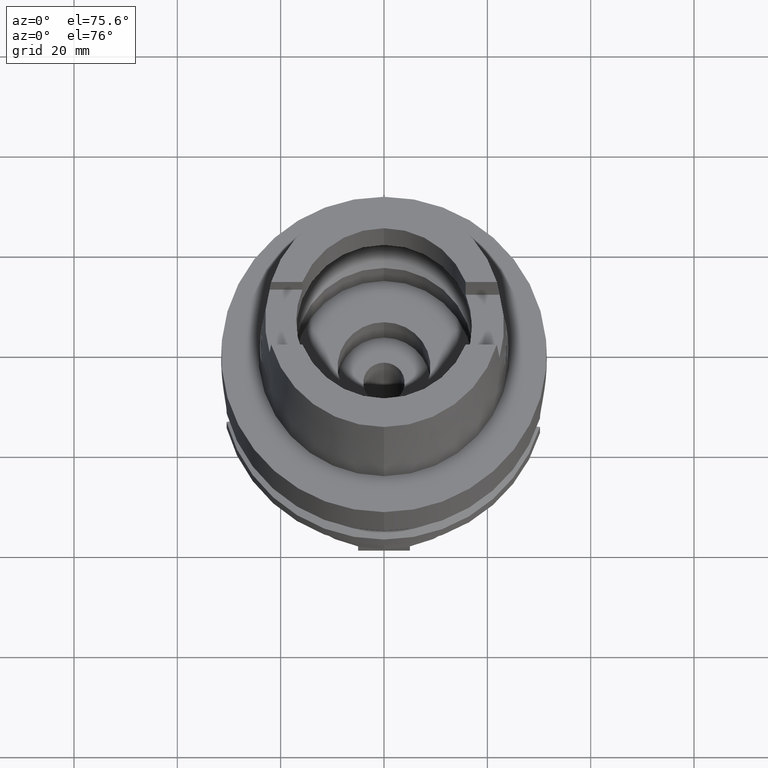
[diagram: clean part render]
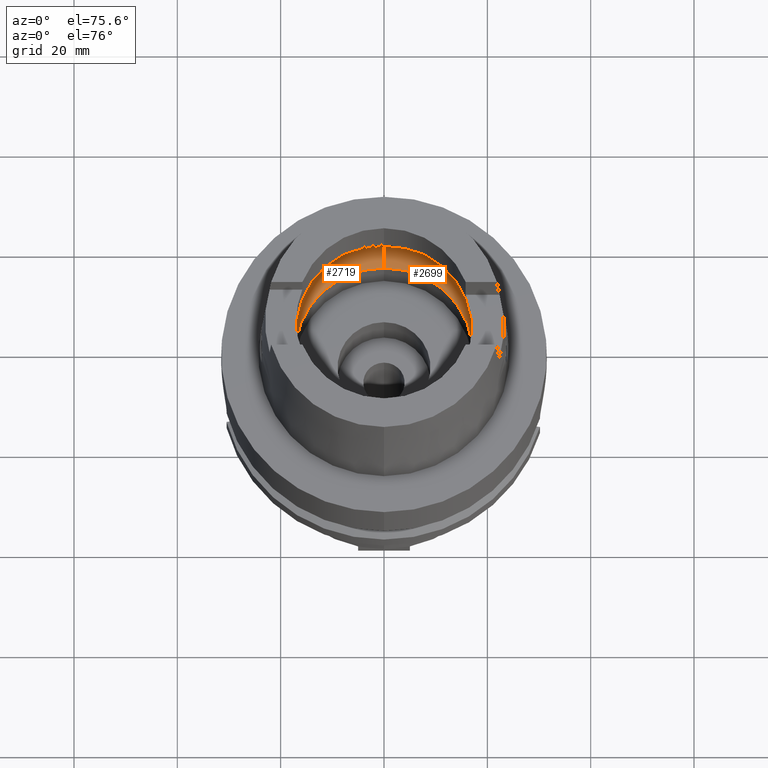
[diagram: same view with one multi-face feature highlighted, each face labeled with its STEP entity id]
A machine part, auxiliary view. The highlighted faces form ONE feature: a constant-radius fillet chain: 2 tangent blend faces with common blend radius 8 mm. The faces share edges in the B-rep.
Their STEP definitions:
[1] entity #2699 (Torus):
#189=CARTESIAN_POINT('',(1.984575864666E1,-2.479085262491E0,6.186348233825E0));
#218=CARTESIAN_POINT('',(1.984575864666E1,2.479085262491E0,6.186348233825E0));
#237=CARTESIAN_POINT('',(1.994501428476E1,0.E0,5.25E0));
#238=CARTESIAN_POINT('',(1.994501428476E1,-3.022112070238E-1,5.25E0));
#239=CARTESIAN_POINT('',(1.994018885500E1,-9.058493638248E-1,5.323260239915E0));
#240=CARTESIAN_POINT('',(1.991332868849E1,-1.758887189824E0,5.646923722537E0));
#241=CARTESIAN_POINT('',(1.987370750085E1,-2.255347005843E0,5.989214309372E0));
#242=CARTESIAN_POINT('',(1.984575864666E1,-2.479085262491E0,6.186348233825E0));
#247=CARTESIAN_POINT('',(0.E0,1.300407714777E-14,6.186348233825E0));
#248=DIRECTION('',(0.E0,0.E0,-1.E0));
#249=DIRECTION('',(9.922879323328E-1,-1.239542631245E-1,0.E0));
#250=AXIS2_PLACEMENT_3D('',#247,#248,#249);
#255=CARTESIAN_POINT('',(0.E0,1.300407714777E-14,1.500000000001E-1));
#256=DIRECTION('',(0.E0,0.E0,1.E0));
#257=DIRECTION('',(0.E0,-1.E0,0.E0));
#258=AXIS2_PLACEMENT_3D('',#255,#256,#257);
#263=CARTESIAN_POINT('',(0.E0,1.2E1,6.186348233825E0));
#264=DIRECTION('',(1.E0,0.E0,0.E0));
#265=DIRECTION('',(0.E0,6.5625E-1,-7.545435292281E-1));
#266=AXIS2_PLACEMENT_3D('',#263,#264,#265);
#271=CARTESIAN_POINT('',(0.E0,1.300407714777E-14,6.186348233825E0));
#272=DIRECTION('',(0.E0,0.E0,-1.E0));
#273=DIRECTION('',(0.E0,1.E0,0.E0));
#274=AXIS2_PLACEMENT_3D('',#271,#272,#273);
#279=CARTESIAN_POINT('',(1.984575864666E1,2.479085262491E0,6.186348233825E0));
#280=CARTESIAN_POINT('',(1.987370791740E1,2.255343671189E0,5.989211371236E0));
#281=CARTESIAN_POINT('',(1.991332922856E1,1.758878096065E0,5.646918222210E0));
#282=CARTESIAN_POINT('',(1.994018908736E1,9.058345850410E-1,5.323256849204E0));
#283=CARTESIAN_POINT('',(1.994501428476E1,3.022047592013E-1,5.25E0));
#284=CARTESIAN_POINT('',(1.994501428476E1,0.E0,5.25E0));
#325=CARTESIAN_POINT('',(0.E0,-1.2E1,6.186348233825E0));
#326=DIRECTION('',(-1.E0,0.E0,0.E0));
#327=DIRECTION('',(0.E0,-6.5625E-1,-7.545435292281E-1));
#328=AXIS2_PLACEMENT_3D('',#325,#326,#327);
#2204=VERTEX_POINT('',#189);
#2206=VERTEX_POINT('',#218);
#2207=CARTESIAN_POINT('',(0.E0,2.E1,6.186348233825E0));
#2208=VERTEX_POINT('',#2207);
#2209=CARTESIAN_POINT('',(0.E0,-2.E1,6.186348233825E0));
#2210=VERTEX_POINT('',#2209);
#2211=VERTEX_POINT('',#237);
#2222=CARTESIAN_POINT('',(0.E0,-1.725E1,1.500000000001E-1));
#2223=VERTEX_POINT('',#2222);
#2224=CARTESIAN_POINT('',(0.E0,1.725E1,1.500000000001E-1));
#2225=VERTEX_POINT('',#2224);
#2681=CARTESIAN_POINT('',(0.E0,1.300407714777E-14,6.186348233825E0));
#2682=DIRECTION('',(0.E0,0.E0,-1.E0));
#2683=DIRECTION('',(0.E0,-1.E0,0.E0));
#2684=AXIS2_PLACEMENT_3D('',#2681,#2682,#2683);
#2685=TOROIDAL_SURFACE('',#2684,1.2E1,8.E0);
#2686=ORIENTED_EDGE('',*,*,#2670,.T.);
#2687=ORIENTED_EDGE('',*,*,#2659,.T.);
#2689=ORIENTED_EDGE('',*,*,#2688,.F.);
#2691=ORIENTED_EDGE('',*,*,#2690,.T.);
#2693=ORIENTED_EDGE('',*,*,#2692,.T.);
#2694=ORIENTED_EDGE('',*,*,#2652,.T.);
#2696=ORIENTED_EDGE('',*,*,#2695,.T.);
#2697=EDGE_LOOP('',(#2686,#2687,#2689,#2691,#2693,#2694,#2696));
#2698=FACE_OUTER_BOUND('',#2697,.F.);
#243=B_SPLINE_CURVE_WITH_KNOTS('',3,(#237,#238,#239,#240,#241,#242),
.UNSPECIFIED.,.F.,.F.,(4,1,1,4),(0.E0,3.333333333333E-1,6.666666666667E-1,1.E0),
.UNSPECIFIED.);
#251=CIRCLE('',#250,2.E1);
#259=CIRCLE('',#258,1.725E1);
#267=CIRCLE('',#266,8.E0);
#275=CIRCLE('',#274,2.E1);
#285=B_SPLINE_CURVE_WITH_KNOTS('',3,(#279,#280,#281,#282,#283,#284),
.UNSPECIFIED.,.F.,.F.,(4,1,1,4),(0.E0,3.333333333333E-1,6.666666666667E-1,1.E0),
.UNSPECIFIED.);
#329=CIRCLE('',#328,8.E0);
#2652=EDGE_CURVE('',#2208,#2206,#275,.T.);
#2659=EDGE_CURVE('',#2204,#2210,#251,.T.);
#2670=EDGE_CURVE('',#2211,#2204,#243,.T.);
#2688=EDGE_CURVE('',#2223,#2210,#329,.T.);
#2690=EDGE_CURVE('',#2223,#2225,#259,.T.);
#2692=EDGE_CURVE('',#2225,#2208,#267,.T.);
#2695=EDGE_CURVE('',#2206,#2211,#285,.T.);
#2699=ADVANCED_FACE('',(#2698),#2685,.F.);
[2] entity #2719 (Torus):
#263=CARTESIAN_POINT('',(0.E0,1.2E1,6.186348233825E0));
#264=DIRECTION('',(1.E0,0.E0,0.E0));
#265=DIRECTION('',(0.E0,6.5625E-1,-7.545435292281E-1));
#266=AXIS2_PLACEMENT_3D('',#263,#264,#265);
#289=CARTESIAN_POINT('',(-1.984575864666E1,-2.479085262491E0,6.186348233825E0));
#290=CARTESIAN_POINT('',(-1.987370782659E1,-2.255344398160E0,5.989212011764E0));
#291=CARTESIAN_POINT('',(-1.991332908590E1,-1.758880025312E0,5.646919634992E0));
#292=CARTESIAN_POINT('',(-1.994018896865E1,-9.058411913828E-1,
5.323258516694E0));
#293=CARTESIAN_POINT('',(-1.994501428476E1,-3.022076727852E-1,5.25E0));
#294=CARTESIAN_POINT('',(-1.994501428476E1,0.E0,5.25E0));
#299=CARTESIAN_POINT('',(-1.994501428476E1,0.E0,5.25E0));
#300=CARTESIAN_POINT('',(-1.994501428476E1,3.022082865573E-1,5.25E0));
#301=CARTESIAN_POINT('',(-1.994018897383E1,9.058427410399E-1,5.323258570057E0));
#302=CARTESIAN_POINT('',(-1.991332883264E1,1.758885230496E0,5.646922293853E0));
#303=CARTESIAN_POINT('',(-1.987370759301E1,2.255346268023E0,5.989213659285E0));
#304=CARTESIAN_POINT('',(-1.984575864666E1,2.479085262491E0,6.186348233825E0));
#309=CARTESIAN_POINT('',(0.E0,1.300407714777E-14,6.186348233825E0));
#310=DIRECTION('',(0.E0,0.E0,-1.E0));
#311=DIRECTION('',(-9.922879323328E-1,1.239542631245E-1,0.E0));
#312=AXIS2_PLACEMENT_3D('',#309,#310,#311);
#317=CARTESIAN_POINT('',(0.E0,1.300407714777E-14,1.500000000001E-1));
#318=DIRECTION('',(0.E0,0.E0,1.E0));
#319=DIRECTION('',(0.E0,1.E0,0.E0));
#320=AXIS2_PLACEMENT_3D('',#317,#318,#319);
#325=CARTESIAN_POINT('',(0.E0,-1.2E1,6.186348233825E0));
#326=DIRECTION('',(-1.E0,0.E0,0.E0));
#327=DIRECTION('',(0.E0,-6.5625E-1,-7.545435292281E-1));
#328=AXIS2_PLACEMENT_3D('',#325,#326,#327);
#333=CARTESIAN_POINT('',(0.E0,1.300407714777E-14,6.186348233825E0));
#334=DIRECTION('',(0.E0,0.E0,-1.E0));
#335=DIRECTION('',(0.E0,-1.E0,0.E0));
#336=AXIS2_PLACEMENT_3D('',#333,#334,#335);
#360=CARTESIAN_POINT('',(-1.984575864666E1,-2.479085262491E0,6.186348233825E0));
#2207=CARTESIAN_POINT('',(0.E0,2.E1,6.186348233825E0));
#2208=VERTEX_POINT('',#2207);
#2209=CARTESIAN_POINT('',(0.E0,-2.E1,6.186348233825E0));
#2210=VERTEX_POINT('',#2209);
#2216=VERTEX_POINT('',#360);
#2220=CARTESIAN_POINT('',(-1.994501428476E1,0.E0,5.25E0));
#2221=VERTEX_POINT('',#2220);
#2222=CARTESIAN_POINT('',(0.E0,-1.725E1,1.500000000001E-1));
#2223=VERTEX_POINT('',#2222);
#2224=CARTESIAN_POINT('',(0.E0,1.725E1,1.500000000001E-1));
#2225=VERTEX_POINT('',#2224);
#2226=VERTEX_POINT('',#304);
#2700=CARTESIAN_POINT('',(0.E0,1.300407714777E-14,6.186348233825E0));
#2701=DIRECTION('',(0.E0,0.E0,-1.E0));
#2702=DIRECTION('',(0.E0,-1.E0,0.E0));
#2703=AXIS2_PLACEMENT_3D('',#2700,#2701,#2702);
#2704=TOROIDAL_SURFACE('',#2703,1.2E1,8.E0);
#2706=ORIENTED_EDGE('',*,*,#2705,.T.);
#2708=ORIENTED_EDGE('',*,*,#2707,.T.);
#2710=ORIENTED_EDGE('',*,*,#2709,.T.);
#2711=ORIENTED_EDGE('',*,*,#2692,.F.);
#2713=ORIENTED_EDGE('',*,*,#2712,.T.);
#2714=ORIENTED_EDGE('',*,*,#2688,.T.);
#2716=ORIENTED_EDGE('',*,*,#2715,.T.);
#2717=EDGE_LOOP('',(#2706,#2708,#2710,#2711,#2713,#2714,#2716));
#2718=FACE_OUTER_BOUND('',#2717,.F.);
#267=CIRCLE('',#266,8.E0);
#295=B_SPLINE_CURVE_WITH_KNOTS('',3,(#289,#290,#291,#292,#293,#294),
.UNSPECIFIED.,.F.,.F.,(4,1,1,4),(0.E0,3.333333333333E-1,6.666666666667E-1,1.E0),
.UNSPECIFIED.);
#305=B_SPLINE_CURVE_WITH_KNOTS('',3,(#299,#300,#301,#302,#303,#304),
.UNSPECIFIED.,.F.,.F.,(4,1,1,4),(0.E0,3.333333333333E-1,6.666666666667E-1,1.E0),
.UNSPECIFIED.);
#313=CIRCLE('',#312,2.E1);
#321=CIRCLE('',#320,1.725E1);
#329=CIRCLE('',#328,8.E0);
#337=CIRCLE('',#336,2.E1);
#2688=EDGE_CURVE('',#2223,#2210,#329,.T.);
#2692=EDGE_CURVE('',#2225,#2208,#267,.T.);
#2705=EDGE_CURVE('',#2216,#2221,#295,.T.);
#2707=EDGE_CURVE('',#2221,#2226,#305,.T.);
#2709=EDGE_CURVE('',#2226,#2208,#313,.T.);
#2712=EDGE_CURVE('',#2225,#2223,#321,.T.);
#2715=EDGE_CURVE('',#2210,#2216,#337,.T.);
#2719=ADVANCED_FACE('',(#2718),#2704,.F.);